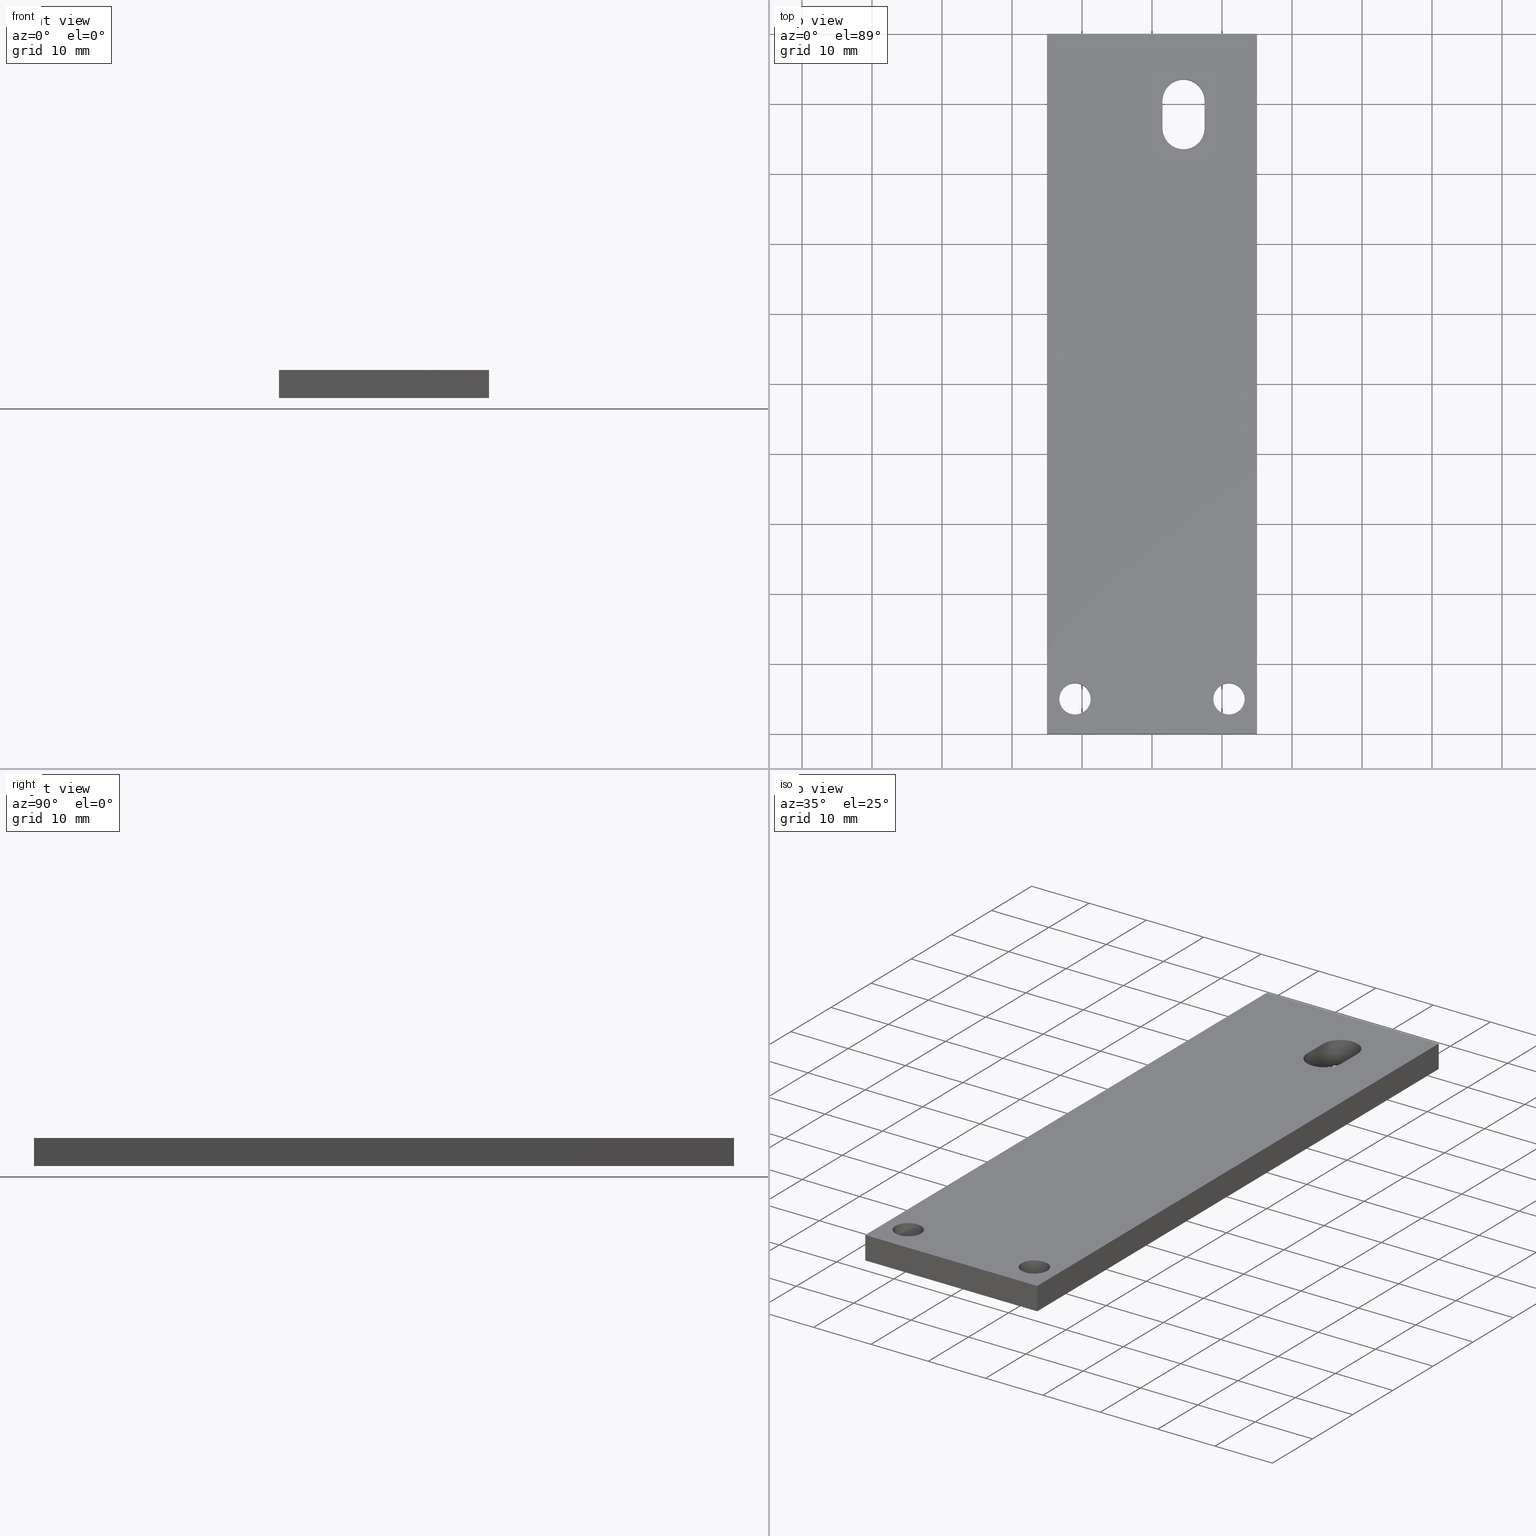
[diagram: canonical four-view strip — front | top / right | iso, engineering-drawing reading convention]
A machine part, canonical four-view strip (front | top / right | iso — engineering-drawing reading convention). The complete STEP part file that produces these views, byte-faithful:
ISO-10303-21;
HEADER;
/* Generated by software containing ST-Developer
 * from STEP Tools, Inc. (www.steptools.com) 
 */

FILE_DESCRIPTION(
/* description */ ('PIATTO PER MICRO  A CERNIERA 100X30'),
/* implementation_level */ '2;1');

FILE_NAME(
/* name */ 
'Q:\\Catalogo\\2_Accessori Dierre\\Per Download Web e catalogo cartace
o\\CATALOGO ACCESSORI PER RIPARI\\PAGINA 71\\DFXMI0000091.stp',
/* time_stamp */ '2018-11-07T11:02:19+01:00',
/* author */ ('fzagni'),
/* organization */ (''),
/* preprocessor_version */ 'ST-DEVELOPER v16.1',
/* originating_system */ 'Autodesk Inventor 2016',
/* authorisation */ '');

FILE_SCHEMA (('AUTOMOTIVE_DESIGN { 1 0 10303 214 3 1 1 }'));
ENDSEC;

DATA;
#10=MECHANICAL_DESIGN_GEOMETRIC_PRESENTATION_REPRESENTATION('',(#13),#379);
#11=SHAPE_REPRESENTATION_RELATIONSHIP('SRR','None',#388,#12);
#12=ADVANCED_BREP_SHAPE_REPRESENTATION('',(#14),#378);
#13=STYLED_ITEM('',(#397),#14);
#14=MANIFOLD_SOLID_BREP('None',#231);
#15=CYLINDRICAL_SURFACE('',#247,2.99999999998818);
#16=CYLINDRICAL_SURFACE('',#249,2.99999999998818);
#17=CYLINDRICAL_SURFACE('',#251,2.25);
#18=CYLINDRICAL_SURFACE('',#252,2.25);
#19=FACE_BOUND('',#52,.T.);
#20=FACE_BOUND('',#53,.T.);
#21=FACE_BOUND('',#54,.T.);
#22=FACE_BOUND('',#56,.T.);
#23=FACE_BOUND('',#57,.T.);
#24=FACE_BOUND('',#58,.T.);
#25=FACE_BOUND('',#64,.T.);
#26=FACE_BOUND('',#66,.T.);
#27=CIRCLE('',#238,2.99999999998818);
#28=CIRCLE('',#239,2.99999999998818);
#29=CIRCLE('',#240,2.25);
#30=CIRCLE('',#241,2.25);
#31=CIRCLE('',#243,2.99999999998818);
#32=CIRCLE('',#244,2.99999999998818);
#33=CIRCLE('',#245,2.25);
#34=CIRCLE('',#246,2.25);
#35=FACE_OUTER_BOUND('',#47,.T.);
#36=FACE_OUTER_BOUND('',#48,.T.);
#37=FACE_OUTER_BOUND('',#49,.T.);
#38=FACE_OUTER_BOUND('',#50,.T.);
#39=FACE_OUTER_BOUND('',#51,.T.);
#40=FACE_OUTER_BOUND('',#55,.T.);
#41=FACE_OUTER_BOUND('',#59,.T.);
#42=FACE_OUTER_BOUND('',#60,.T.);
#43=FACE_OUTER_BOUND('',#61,.T.);
#44=FACE_OUTER_BOUND('',#62,.T.);
#45=FACE_OUTER_BOUND('',#63,.T.);
#46=FACE_OUTER_BOUND('',#65,.T.);
#47=EDGE_LOOP('',(#155,#156,#157,#158));
#48=EDGE_LOOP('',(#159,#160,#161,#162));
#49=EDGE_LOOP('',(#163,#164,#165,#166));
#50=EDGE_LOOP('',(#167,#168,#169,#170));
#51=EDGE_LOOP('',(#171,#172,#173,#174));
#52=EDGE_LOOP('',(#175,#176,#177,#178));
#53=EDGE_LOOP('',(#179));
#54=EDGE_LOOP('',(#180));
#55=EDGE_LOOP('',(#181,#182,#183,#184));
#56=EDGE_LOOP('',(#185,#186,#187,#188));
#57=EDGE_LOOP('',(#189));
#58=EDGE_LOOP('',(#190));
#59=EDGE_LOOP('',(#191,#192,#193,#194));
#60=EDGE_LOOP('',(#195,#196,#197,#198));
#61=EDGE_LOOP('',(#199,#200,#201,#202));
#62=EDGE_LOOP('',(#203,#204,#205,#206));
#63=EDGE_LOOP('',(#207));
#64=EDGE_LOOP('',(#208));
#65=EDGE_LOOP('',(#209));
#66=EDGE_LOOP('',(#210));
#67=LINE('',#319,#87);
#68=LINE('',#321,#88);
#69=LINE('',#323,#89);
#70=LINE('',#324,#90);
#71=LINE('',#327,#91);
#72=LINE('',#329,#92);
#73=LINE('',#330,#93);
#74=LINE('',#333,#94);
#75=LINE('',#335,#95);
#76=LINE('',#336,#96);
#77=LINE('',#338,#97);
#78=LINE('',#339,#98);
#79=LINE('',#343,#99);
#80=LINE('',#347,#100);
#81=LINE('',#358,#101);
#82=LINE('',#361,#102);
#83=LINE('',#367,#103);
#84=LINE('',#368,#104);
#85=LINE('',#370,#105);
#86=LINE('',#372,#106);
#87=VECTOR('',#257,4.);
#88=VECTOR('',#258,99.9999999996007);
#89=VECTOR('',#259,4.);
#90=VECTOR('',#260,99.9999999996007);
#91=VECTOR('',#263,29.9999999998799);
#92=VECTOR('',#264,4.);
#93=VECTOR('',#265,29.9999999998799);
#94=VECTOR('',#268,99.9999999996007);
#95=VECTOR('',#269,4.);
#96=VECTOR('',#270,99.9999999996007);
#97=VECTOR('',#273,29.9999999998799);
#98=VECTOR('',#274,29.9999999998799);
#99=VECTOR('',#277,3.99999999998362);
#100=VECTOR('',#280,3.99999999998362);
#101=VECTOR('',#291,3.99999999998362);
#102=VECTOR('',#294,3.99999999998362);
#103=VECTOR('',#301,4.);
#104=VECTOR('',#302,4.);
#105=VECTOR('',#305,4.);
#106=VECTOR('',#308,4.);
#107=VERTEX_POINT('',#317);
#108=VERTEX_POINT('',#318);
#109=VERTEX_POINT('',#320);
#110=VERTEX_POINT('',#322);
#111=VERTEX_POINT('',#326);
#112=VERTEX_POINT('',#328);
#113=VERTEX_POINT('',#332);
#114=VERTEX_POINT('',#334);
#115=VERTEX_POINT('',#341);
#116=VERTEX_POINT('',#342);
#117=VERTEX_POINT('',#344);
#118=VERTEX_POINT('',#346);
#119=VERTEX_POINT('',#349);
#120=VERTEX_POINT('',#351);
#121=VERTEX_POINT('',#354);
#122=VERTEX_POINT('',#355);
#123=VERTEX_POINT('',#357);
#124=VERTEX_POINT('',#359);
#125=VERTEX_POINT('',#362);
#126=VERTEX_POINT('',#364);
#127=EDGE_CURVE('',#107,#108,#67,.T.);
#128=EDGE_CURVE('',#108,#109,#68,.T.);
#129=EDGE_CURVE('',#110,#109,#69,.T.);
#130=EDGE_CURVE('',#107,#110,#70,.T.);
#131=EDGE_CURVE('',#109,#111,#71,.T.);
#132=EDGE_CURVE('',#112,#111,#72,.T.);
#133=EDGE_CURVE('',#110,#112,#73,.T.);
#134=EDGE_CURVE('',#111,#113,#74,.T.);
#135=EDGE_CURVE('',#114,#113,#75,.T.);
#136=EDGE_CURVE('',#112,#114,#76,.T.);
#137=EDGE_CURVE('',#113,#108,#77,.T.);
#138=EDGE_CURVE('',#114,#107,#78,.T.);
#139=EDGE_CURVE('',#115,#116,#79,.T.);
#140=EDGE_CURVE('',#117,#116,#27,.T.);
#141=EDGE_CURVE('',#118,#117,#80,.T.);
#142=EDGE_CURVE('',#115,#118,#28,.T.);
#143=EDGE_CURVE('',#119,#119,#29,.T.);
#144=EDGE_CURVE('',#120,#120,#30,.T.);
#145=EDGE_CURVE('',#121,#122,#31,.T.);
#146=EDGE_CURVE('',#122,#123,#81,.T.);
#147=EDGE_CURVE('',#123,#124,#32,.T.);
#148=EDGE_CURVE('',#121,#124,#82,.T.);
#149=EDGE_CURVE('',#125,#125,#33,.T.);
#150=EDGE_CURVE('',#126,#126,#34,.T.);
#151=EDGE_CURVE('',#121,#115,#83,.T.);
#152=EDGE_CURVE('',#122,#118,#84,.T.);
#153=EDGE_CURVE('',#123,#117,#85,.T.);
#154=EDGE_CURVE('',#124,#116,#86,.T.);
#155=ORIENTED_EDGE('',*,*,#127,.T.);
#156=ORIENTED_EDGE('',*,*,#128,.T.);
#157=ORIENTED_EDGE('',*,*,#129,.F.);
#158=ORIENTED_EDGE('',*,*,#130,.F.);
#159=ORIENTED_EDGE('',*,*,#129,.T.);
#160=ORIENTED_EDGE('',*,*,#131,.T.);
#161=ORIENTED_EDGE('',*,*,#132,.F.);
#162=ORIENTED_EDGE('',*,*,#133,.F.);
#163=ORIENTED_EDGE('',*,*,#132,.T.);
#164=ORIENTED_EDGE('',*,*,#134,.T.);
#165=ORIENTED_EDGE('',*,*,#135,.F.);
#166=ORIENTED_EDGE('',*,*,#136,.F.);
#167=ORIENTED_EDGE('',*,*,#135,.T.);
#168=ORIENTED_EDGE('',*,*,#137,.T.);
#169=ORIENTED_EDGE('',*,*,#127,.F.);
#170=ORIENTED_EDGE('',*,*,#138,.F.);
#171=ORIENTED_EDGE('',*,*,#130,.T.);
#172=ORIENTED_EDGE('',*,*,#133,.T.);
#173=ORIENTED_EDGE('',*,*,#136,.T.);
#174=ORIENTED_EDGE('',*,*,#138,.T.);
#175=ORIENTED_EDGE('',*,*,#139,.T.);
#176=ORIENTED_EDGE('',*,*,#140,.F.);
#177=ORIENTED_EDGE('',*,*,#141,.F.);
#178=ORIENTED_EDGE('',*,*,#142,.F.);
#179=ORIENTED_EDGE('',*,*,#143,.F.);
#180=ORIENTED_EDGE('',*,*,#144,.F.);
#181=ORIENTED_EDGE('',*,*,#137,.F.);
#182=ORIENTED_EDGE('',*,*,#134,.F.);
#183=ORIENTED_EDGE('',*,*,#131,.F.);
#184=ORIENTED_EDGE('',*,*,#128,.F.);
#185=ORIENTED_EDGE('',*,*,#145,.T.);
#186=ORIENTED_EDGE('',*,*,#146,.T.);
#187=ORIENTED_EDGE('',*,*,#147,.T.);
#188=ORIENTED_EDGE('',*,*,#148,.F.);
#189=ORIENTED_EDGE('',*,*,#149,.F.);
#190=ORIENTED_EDGE('',*,*,#150,.F.);
#191=ORIENTED_EDGE('',*,*,#151,.T.);
#192=ORIENTED_EDGE('',*,*,#142,.T.);
#193=ORIENTED_EDGE('',*,*,#152,.F.);
#194=ORIENTED_EDGE('',*,*,#145,.F.);
#195=ORIENTED_EDGE('',*,*,#152,.T.);
#196=ORIENTED_EDGE('',*,*,#141,.T.);
#197=ORIENTED_EDGE('',*,*,#153,.F.);
#198=ORIENTED_EDGE('',*,*,#146,.F.);
#199=ORIENTED_EDGE('',*,*,#153,.T.);
#200=ORIENTED_EDGE('',*,*,#140,.T.);
#201=ORIENTED_EDGE('',*,*,#154,.F.);
#202=ORIENTED_EDGE('',*,*,#147,.F.);
#203=ORIENTED_EDGE('',*,*,#148,.T.);
#204=ORIENTED_EDGE('',*,*,#154,.T.);
#205=ORIENTED_EDGE('',*,*,#139,.F.);
#206=ORIENTED_EDGE('',*,*,#151,.F.);
#207=ORIENTED_EDGE('',*,*,#149,.T.);
#208=ORIENTED_EDGE('',*,*,#143,.T.);
#209=ORIENTED_EDGE('',*,*,#150,.T.);
#210=ORIENTED_EDGE('',*,*,#144,.T.);
#211=PLANE('',#233);
#212=PLANE('',#234);
#213=PLANE('',#235);
#214=PLANE('',#236);
#215=PLANE('',#237);
#216=PLANE('',#242);
#217=PLANE('',#248);
#218=PLANE('',#250);
#219=ADVANCED_FACE('',(#35),#211,.F.);
#220=ADVANCED_FACE('',(#36),#212,.F.);
#221=ADVANCED_FACE('',(#37),#213,.F.);
#222=ADVANCED_FACE('',(#38),#214,.F.);
#223=ADVANCED_FACE('',(#39,#19,#20,#21),#215,.T.);
#224=ADVANCED_FACE('',(#40,#22,#23,#24),#216,.F.);
#225=ADVANCED_FACE('',(#41),#15,.F.);
#226=ADVANCED_FACE('',(#42),#217,.F.);
#227=ADVANCED_FACE('',(#43),#16,.F.);
#228=ADVANCED_FACE('',(#44),#218,.F.);
#229=ADVANCED_FACE('',(#45,#25),#17,.F.);
#230=ADVANCED_FACE('',(#46,#26),#18,.F.);
#231=CLOSED_SHELL('',(#219,#220,#221,#222,#223,#224,#225,#226,#227,#228,
#229,#230));
#232=AXIS2_PLACEMENT_3D('placement',#315,#253,#254);
#233=AXIS2_PLACEMENT_3D('',#316,#255,#256);
#234=AXIS2_PLACEMENT_3D('',#325,#261,#262);
#235=AXIS2_PLACEMENT_3D('',#331,#266,#267);
#236=AXIS2_PLACEMENT_3D('',#337,#271,#272);
#237=AXIS2_PLACEMENT_3D('',#340,#275,#276);
#238=AXIS2_PLACEMENT_3D('',#345,#278,#279);
#239=AXIS2_PLACEMENT_3D('',#348,#281,#282);
#240=AXIS2_PLACEMENT_3D('',#350,#283,#284);
#241=AXIS2_PLACEMENT_3D('',#352,#285,#286);
#242=AXIS2_PLACEMENT_3D('',#353,#287,#288);
#243=AXIS2_PLACEMENT_3D('',#356,#289,#290);
#244=AXIS2_PLACEMENT_3D('',#360,#292,#293);
#245=AXIS2_PLACEMENT_3D('',#363,#295,#296);
#246=AXIS2_PLACEMENT_3D('',#365,#297,#298);
#247=AXIS2_PLACEMENT_3D('',#366,#299,#300);
#248=AXIS2_PLACEMENT_3D('',#369,#303,#304);
#249=AXIS2_PLACEMENT_3D('',#371,#306,#307);
#250=AXIS2_PLACEMENT_3D('',#373,#309,#310);
#251=AXIS2_PLACEMENT_3D('',#374,#311,#312);
#252=AXIS2_PLACEMENT_3D('',#375,#313,#314);
#253=DIRECTION('axis',(0.,0.,1.));
#254=DIRECTION('refdir',(1.,0.,0.));
#255=DIRECTION('center_axis',(-1.,0.,0.));
#256=DIRECTION('ref_axis',(0.,0.,1.));
#257=DIRECTION('',(0.,0.,-1.));
#258=DIRECTION('',(0.,1.,0.));
#259=DIRECTION('',(0.,0.,-1.));
#260=DIRECTION('',(0.,1.,0.));
#261=DIRECTION('center_axis',(0.,-1.,0.));
#262=DIRECTION('ref_axis',(0.,0.,-1.));
#263=DIRECTION('',(-1.,0.,0.));
#264=DIRECTION('',(0.,0.,-1.));
#265=DIRECTION('',(-1.,0.,0.));
#266=DIRECTION('center_axis',(1.,0.,0.));
#267=DIRECTION('ref_axis',(0.,0.,-1.));
#268=DIRECTION('',(0.,-1.,0.));
#269=DIRECTION('',(0.,0.,-1.));
#270=DIRECTION('',(0.,-1.,0.));
#271=DIRECTION('center_axis',(0.,1.,0.));
#272=DIRECTION('ref_axis',(0.,0.,1.));
#273=DIRECTION('',(1.,0.,0.));
#274=DIRECTION('',(1.,0.,0.));
#275=DIRECTION('center_axis',(0.,0.,1.));
#276=DIRECTION('ref_axis',(1.,0.,0.));
#277=DIRECTION('',(0.,1.,0.));
#278=DIRECTION('center_axis',(0.,0.,1.));
#279=DIRECTION('ref_axis',(1.,0.,0.));
#280=DIRECTION('',(0.,1.,0.));
#281=DIRECTION('center_axis',(0.,0.,1.));
#282=DIRECTION('ref_axis',(1.,0.,0.));
#283=DIRECTION('center_axis',(0.,0.,1.));
#284=DIRECTION('ref_axis',(1.,0.,0.));
#285=DIRECTION('center_axis',(0.,0.,1.));
#286=DIRECTION('ref_axis',(1.,0.,0.));
#287=DIRECTION('center_axis',(0.,0.,1.));
#288=DIRECTION('ref_axis',(1.,0.,0.));
#289=DIRECTION('center_axis',(0.,0.,1.));
#290=DIRECTION('ref_axis',(1.,0.,0.));
#291=DIRECTION('',(0.,1.,0.));
#292=DIRECTION('center_axis',(0.,0.,1.));
#293=DIRECTION('ref_axis',(1.,0.,0.));
#294=DIRECTION('',(0.,1.,0.));
#295=DIRECTION('center_axis',(0.,0.,-1.));
#296=DIRECTION('ref_axis',(1.,0.,0.));
#297=DIRECTION('center_axis',(0.,0.,-1.));
#298=DIRECTION('ref_axis',(1.,0.,0.));
#299=DIRECTION('center_axis',(0.,0.,1.));
#300=DIRECTION('ref_axis',(-1.,0.,0.));
#301=DIRECTION('',(0.,0.,1.));
#302=DIRECTION('',(0.,0.,1.));
#303=DIRECTION('center_axis',(1.,0.,0.));
#304=DIRECTION('ref_axis',(0.,0.,-1.));
#305=DIRECTION('',(0.,0.,1.));
#306=DIRECTION('center_axis',(0.,0.,1.));
#307=DIRECTION('ref_axis',(1.,0.,0.));
#308=DIRECTION('',(0.,0.,1.));
#309=DIRECTION('center_axis',(-1.,0.,0.));
#310=DIRECTION('ref_axis',(0.,0.,1.));
#311=DIRECTION('center_axis',(0.,0.,1.));
#312=DIRECTION('ref_axis',(1.,0.,0.));
#313=DIRECTION('center_axis',(0.,0.,1.));
#314=DIRECTION('ref_axis',(1.,0.,0.));
#315=CARTESIAN_POINT('',(0.,0.,0.));
#316=CARTESIAN_POINT('Origin',(14.99999999994,-99.9999999996007,4.));
#317=CARTESIAN_POINT('',(14.99999999994,-99.9999999996007,4.));
#318=CARTESIAN_POINT('',(14.99999999994,-99.9999999996007,0.));
#319=CARTESIAN_POINT('',(14.99999999994,-99.9999999996007,4.));
#320=CARTESIAN_POINT('',(14.99999999994,0.,0.));
#321=CARTESIAN_POINT('',(14.99999999994,-99.9999999996007,0.));
#322=CARTESIAN_POINT('',(14.99999999994,0.,4.));
#323=CARTESIAN_POINT('',(14.99999999994,0.,4.));
#324=CARTESIAN_POINT('',(14.99999999994,-99.9999999996007,4.));
#325=CARTESIAN_POINT('Origin',(14.99999999994,0.,4.));
#326=CARTESIAN_POINT('',(-14.99999999994,0.,0.));
#327=CARTESIAN_POINT('',(14.99999999994,0.,0.));
#328=CARTESIAN_POINT('',(-14.99999999994,0.,4.));
#329=CARTESIAN_POINT('',(-14.99999999994,0.,4.));
#330=CARTESIAN_POINT('',(14.99999999994,0.,4.));
#331=CARTESIAN_POINT('Origin',(-14.99999999994,0.,4.));
#332=CARTESIAN_POINT('',(-14.99999999994,-99.9999999996007,0.));
#333=CARTESIAN_POINT('',(-14.99999999994,0.,0.));
#334=CARTESIAN_POINT('',(-14.99999999994,-99.9999999996007,4.));
#335=CARTESIAN_POINT('',(-14.99999999994,-99.9999999996007,4.));
#336=CARTESIAN_POINT('',(-14.99999999994,0.,4.));
#337=CARTESIAN_POINT('Origin',(-14.99999999994,-99.9999999996007,4.));
#338=CARTESIAN_POINT('',(-14.99999999994,-99.9999999996007,0.));
#339=CARTESIAN_POINT('',(-14.99999999994,-99.9999999996007,4.));
#340=CARTESIAN_POINT('Origin',(-18.0000517800536,-110.000051800419,4.));
#341=CARTESIAN_POINT('',(1.49999999999363,-13.4999999999463,4.));
#342=CARTESIAN_POINT('',(1.49999999999363,-9.49999999996271,4.));
#343=CARTESIAN_POINT('',(1.49999999999363,-13.4999999999463,4.));
#344=CARTESIAN_POINT('',(7.49999999996999,-9.49999999996271,4.));
#345=CARTESIAN_POINT('Origin',(4.49999999998181,-9.49999999996271,4.));
#346=CARTESIAN_POINT('',(7.49999999996999,-13.4999999999463,4.));
#347=CARTESIAN_POINT('',(7.49999999996999,-13.4999999999463,4.));
#348=CARTESIAN_POINT('Origin',(4.49999999998181,-13.4999999999463,4.));
#349=CARTESIAN_POINT('',(-13.2499999999559,-94.9999999996207,4.));
#350=CARTESIAN_POINT('Origin',(-10.9999999999559,-94.9999999996207,4.));
#351=CARTESIAN_POINT('',(8.74999999995589,-94.9999999996207,4.));
#352=CARTESIAN_POINT('Origin',(10.9999999999559,-94.9999999996207,4.));
#353=CARTESIAN_POINT('Origin',(-18.0000517800536,-110.000051800419,0.));
#354=CARTESIAN_POINT('',(1.49999999999363,-13.4999999999463,0.));
#355=CARTESIAN_POINT('',(7.49999999996999,-13.4999999999463,0.));
#356=CARTESIAN_POINT('Origin',(4.49999999998181,-13.4999999999463,0.));
#357=CARTESIAN_POINT('',(7.49999999996999,-9.49999999996271,0.));
#358=CARTESIAN_POINT('',(7.49999999996999,-13.4999999999463,0.));
#359=CARTESIAN_POINT('',(1.49999999999363,-9.49999999996271,0.));
#360=CARTESIAN_POINT('Origin',(4.49999999998181,-9.49999999996271,0.));
#361=CARTESIAN_POINT('',(1.49999999999363,-13.4999999999463,0.));
#362=CARTESIAN_POINT('',(-13.2499999999559,-94.9999999996207,0.));
#363=CARTESIAN_POINT('Origin',(-10.9999999999559,-94.9999999996207,0.));
#364=CARTESIAN_POINT('',(8.74999999995589,-94.9999999996207,0.));
#365=CARTESIAN_POINT('Origin',(10.9999999999559,-94.9999999996207,0.));
#366=CARTESIAN_POINT('Origin',(4.49999999998181,-13.4999999999463,-0.400189876556396));
#367=CARTESIAN_POINT('',(1.49999999999363,-13.4999999999463,0.));
#368=CARTESIAN_POINT('',(7.49999999996999,-13.4999999999463,0.));
#369=CARTESIAN_POINT('Origin',(7.49999999996999,-13.4999999999463,-0.400189876556396));
#370=CARTESIAN_POINT('',(7.49999999996999,-9.49999999996271,0.));
#371=CARTESIAN_POINT('Origin',(4.49999999998181,-9.49999999996271,-0.400189876556396));
#372=CARTESIAN_POINT('',(1.49999999999363,-9.49999999996271,0.));
#373=CARTESIAN_POINT('Origin',(1.49999999999363,-9.49999999996271,-0.400189876556396));
#374=CARTESIAN_POINT('Origin',(-10.9999999999559,-94.9999999996207,4.));
#375=CARTESIAN_POINT('Origin',(10.9999999999559,-94.9999999996207,4.));
#376=UNCERTAINTY_MEASURE_WITH_UNIT(LENGTH_MEASURE(0.01),#380,
'DISTANCE_ACCURACY_VALUE',
'Maximum model space distance between geometric entities at asserted c
onnectivities');
#377=UNCERTAINTY_MEASURE_WITH_UNIT(LENGTH_MEASURE(1.E-6),#380,
'DISTANCE_ACCURACY_VALUE',
'Maximum model space distance between geometric entities at asserted c
onnectivities');
#378=(
GEOMETRIC_REPRESENTATION_CONTEXT(3)
GLOBAL_UNCERTAINTY_ASSIGNED_CONTEXT((#376))
GLOBAL_UNIT_ASSIGNED_CONTEXT((#380,#383,#381))
REPRESENTATION_CONTEXT('','3D')
);
#379=(
GEOMETRIC_REPRESENTATION_CONTEXT(3)
GLOBAL_UNCERTAINTY_ASSIGNED_CONTEXT((#377))
GLOBAL_UNIT_ASSIGNED_CONTEXT((#380,#383,#381))
REPRESENTATION_CONTEXT('','3D')
);
#380=(
LENGTH_UNIT()
NAMED_UNIT(*)
SI_UNIT(.MILLI.,.METRE.)
);
#381=(
NAMED_UNIT(*)
SI_UNIT($,.STERADIAN.)
SOLID_ANGLE_UNIT()
);
#382=DIMENSIONAL_EXPONENTS(0.,0.,0.,0.,0.,0.,0.);
#383=(
CONVERSION_BASED_UNIT('degree',#385)
NAMED_UNIT(#382)
PLANE_ANGLE_UNIT()
);
#384=(
NAMED_UNIT(*)
PLANE_ANGLE_UNIT()
SI_UNIT($,.RADIAN.)
);
#385=PLANE_ANGLE_MEASURE_WITH_UNIT(PLANE_ANGLE_MEASURE(0.01745329252),#384);
#386=SHAPE_DEFINITION_REPRESENTATION(#387,#388);
#387=PRODUCT_DEFINITION_SHAPE('',$,#390);
#388=SHAPE_REPRESENTATION('',(#232),#378);
#389=PRODUCT_DEFINITION_CONTEXT('part definition',#394,'design');
#390=PRODUCT_DEFINITION('DFXMI0000091 (20.101.00)',
'DFXMI0000091 (20.101.00)',#391,#389);
#391=PRODUCT_DEFINITION_FORMATION('','B',#396);
#392=PRODUCT_RELATED_PRODUCT_CATEGORY('DFXMI0000091 (20.101.00)',
'DFXMI0000091 (20.101.00)',(#396));
#393=APPLICATION_PROTOCOL_DEFINITION('international standard',
'automotive_design',2009,#394);
#394=APPLICATION_CONTEXT(
'Core Data for Automotive Mechanical Design Process');
#395=PRODUCT_CONTEXT('part definition',#394,'mechanical');
#396=PRODUCT('DFXMI0000091 (20.101.00)','DFXMI0000091 (20.101.00)',$,(#395));
#397=PRESENTATION_STYLE_ASSIGNMENT((#398));
#398=SURFACE_STYLE_USAGE(.BOTH.,#399);
#399=SURFACE_SIDE_STYLE('',(#400));
#400=SURFACE_STYLE_FILL_AREA(#401);
#401=FILL_AREA_STYLE('',(#402));
#402=FILL_AREA_STYLE_COLOUR('',#403);
#403=COLOUR_RGB('',0.63921568627451,0.63921568627451,0.686274509803922);
ENDSEC;
END-ISO-10303-21;
